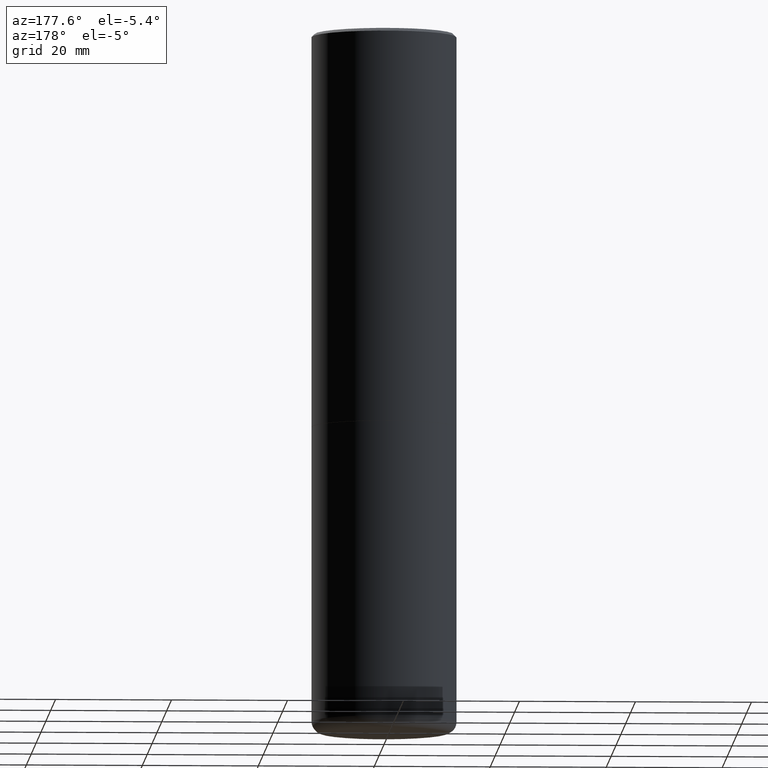
[diagram: clean part render]
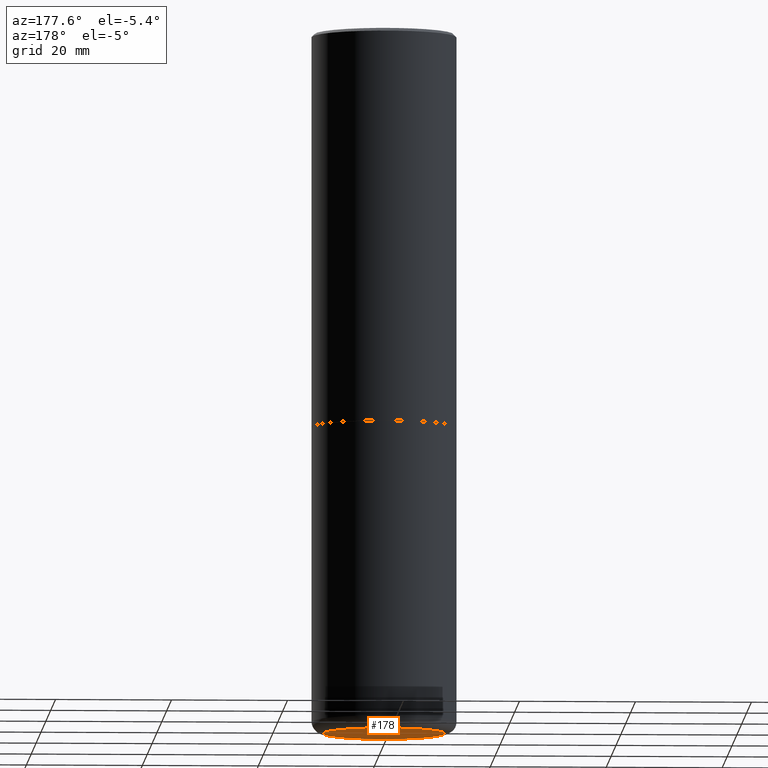
[diagram: same view with one face highlighted and labeled with its STEP entity id]
A machine part, auxiliary view. The second image highlights one B-rep face of the part: STEP entity #178.
In plain terms, the highlighted planar face has unit normal (0, -0, -1).
Its self-contained STEP definition (entity closure, byte-faithful):
#29 = CIRCLE ( 'NONE', #285, 0.4134499999999999287 ) ;
#41 = DIRECTION ( 'NONE',  ( -1.000000000000000000, 6.982962677686265922E-15, -4.876176775795935793E-29 ) ) ;
#105 = FACE_OUTER_BOUND ( 'NONE', #277, .T. ) ;
#107 = CARTESIAN_POINT ( 'NONE',  ( -0.4134499999999999287, -1.327799150377576435E-14, -4.763799999999998924 ) ) ;
#131 = DIRECTION ( 'NONE',  ( -2.445468806185136597E-29, 3.491481338843145583E-15, 1.000000000000000000 ) ) ;
#161 = DIRECTION ( 'NONE',  ( -2.445468806185136597E-29, 3.491481338843145583E-15, 1.000000000000000000 ) ) ;
#164 = DIRECTION ( 'NONE',  ( 1.000000000000000000, -6.982962677686271444E-15, 0.000000000000000000 ) ) ;
#169 = CARTESIAN_POINT ( 'NONE',  ( 0.4134499999999999287, -1.951982472107036283E-14, -4.763799999999998924 ) ) ;
#178 = ADVANCED_FACE ( 'NONE', ( #105 ), #192, .T. ) ;
#181 = ORIENTED_EDGE ( 'NONE', *, *, #269, .F. ) ;
#192 = PLANE ( 'NONE',  #279 ) ;
#228 = EDGE_CURVE ( 'NONE', #349, #313, #335, .T. ) ;
#229 = ORIENTED_EDGE ( 'NONE', *, *, #228, .F. ) ;
#269 = EDGE_CURVE ( 'NONE', #313, #349, #29, .T. ) ;
#272 = AXIS2_PLACEMENT_3D ( 'NONE', #388, #161, #164 ) ;
#277 = EDGE_LOOP ( 'NONE', ( #181, #229 ) ) ;
#279 = AXIS2_PLACEMENT_3D ( 'NONE', #287, #391, #41 ) ;
#285 = AXIS2_PLACEMENT_3D ( 'NONE', #325, #131, #368 ) ;
#287 = CARTESIAN_POINT ( 'NONE',  ( 1.604571505845230914E-28, -1.033740983005313699E-14, -4.763799999999998924 ) ) ;
#313 = VERTEX_POINT ( 'NONE', #169 ) ;
#325 = CARTESIAN_POINT ( 'NONE',  ( 1.164972429890475074E-28, -1.663271880198097531E-14, -4.763799999999998924 ) ) ;
#335 = CIRCLE ( 'NONE', #272, 0.4134499999999999287 ) ;
#349 = VERTEX_POINT ( 'NONE', #107 ) ;
#368 = DIRECTION ( 'NONE',  ( 1.000000000000000000, -6.982962677686271444E-15, 0.000000000000000000 ) ) ;
#388 = CARTESIAN_POINT ( 'NONE',  ( 1.164972429890475074E-28, -1.663271880198097531E-14, -4.763799999999998924 ) ) ;
#391 = DIRECTION ( 'NONE',  ( 2.438088387897960049E-29, -3.491481338843145188E-15, -1.000000000000000000 ) ) ;